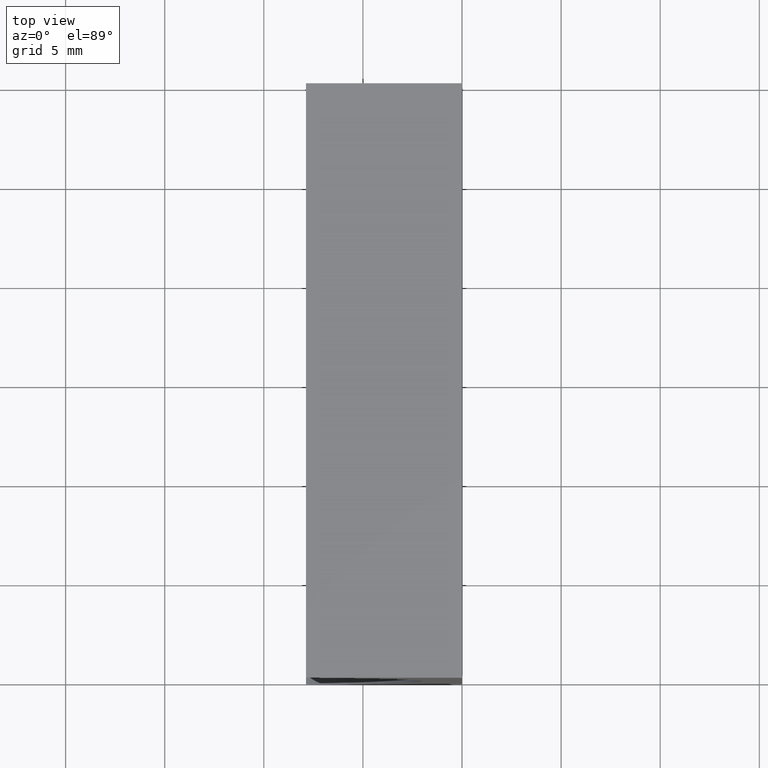
[diagram: clean part render]
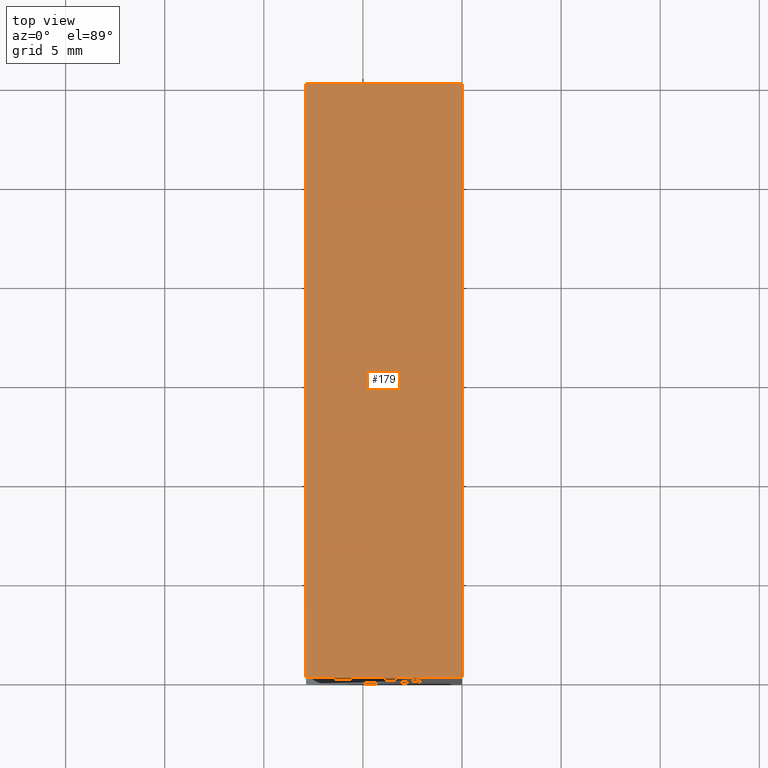
[diagram: same view with one face highlighted and labeled with its STEP entity id]
A machine part, top view. The second image highlights one B-rep face of the part: STEP entity #179.
In plain terms, the highlighted planar face has unit normal (-0, 0, -1).
Its self-contained STEP definition (entity closure, byte-faithful):
#4 = ORIENTED_EDGE ( 'NONE', *, *, #193, .T. ) ;
#12 = VERTEX_POINT ( 'NONE', #191 ) ;
#14 = DIRECTION ( 'NONE',  ( 1.000000000000000000, -0.0000000000000000000, -4.406744573704530200E-016 ) ) ;
#25 = LINE ( 'NONE', #150, #103 ) ;
#28 = CARTESIAN_POINT ( 'NONE',  ( 2.449293598294706500E-015, 30.00000000000000000, 20.00000000000000000 ) ) ;
#30 = AXIS2_PLACEMENT_3D ( 'NONE', #177, #202, #133 ) ;
#43 = VECTOR ( 'NONE', #158, 1000.000000000000000 ) ;
#53 = EDGE_CURVE ( 'NONE', #12, #108, #106, .T. ) ;
#56 = ORIENTED_EDGE ( 'NONE', *, *, #53, .T. ) ;
#64 = LINE ( 'NONE', #180, #43 ) ;
#65 = CARTESIAN_POINT ( 'NONE',  ( 2.449293598294706500E-015, 30.00000000000000000, 20.00000000000000000 ) ) ;
#73 = CARTESIAN_POINT ( 'NONE',  ( -7.873038461671089100, 30.00000000000000000, 20.00000000000000400 ) ) ;
#97 = LINE ( 'NONE', #28, #159 ) ;
#101 = VERTEX_POINT ( 'NONE', #73 ) ;
#103 = VECTOR ( 'NONE', #156, 1000.000000000000000 ) ;
#106 = LINE ( 'NONE', #152, #119 ) ;
#108 = VERTEX_POINT ( 'NONE', #128 ) ;
#119 = VECTOR ( 'NONE', #14, 1000.000000000000000 ) ;
#120 = VERTEX_POINT ( 'NONE', #65 ) ;
#128 = CARTESIAN_POINT ( 'NONE',  ( 2.449293598294706500E-015, 0.0000000000000000000, 20.00000000000000000 ) ) ;
#133 = DIRECTION ( 'NONE',  ( -1.000000000000000000, 0.0000000000000000000, 4.406744573704530200E-016 ) ) ;
#138 = EDGE_CURVE ( 'NONE', #101, #120, #25, .T. ) ;
#149 = FACE_OUTER_BOUND ( 'NONE', #203, .T. ) ;
#150 = CARTESIAN_POINT ( 'NONE',  ( 2.449293598294706500E-015, 30.00000000000000000, 20.00000000000000000 ) ) ;
#151 = EDGE_CURVE ( 'NONE', #120, #108, #97, .T. ) ;
#152 = CARTESIAN_POINT ( 'NONE',  ( 2.449293598294706500E-015, 0.0000000000000000000, 20.00000000000000000 ) ) ;
#156 = DIRECTION ( 'NONE',  ( 1.000000000000000000, -0.0000000000000000000, -4.406744573704530200E-016 ) ) ;
#158 = DIRECTION ( 'NONE',  ( -0.0000000000000000000, -1.000000000000000000, -0.0000000000000000000 ) ) ;
#159 = VECTOR ( 'NONE', #189, 1000.000000000000000 ) ;
#177 = CARTESIAN_POINT ( 'NONE',  ( 2.449293598294706500E-015, 30.00000000000000000, 20.00000000000000000 ) ) ;
#179 = ADVANCED_FACE ( 'NONE', ( #149 ), #184, .F. ) ;
#180 = CARTESIAN_POINT ( 'NONE',  ( -7.873038461671089100, 30.00000000000000000, 20.00000000000000400 ) ) ;
#184 = PLANE ( 'NONE',  #30 ) ;
#189 = DIRECTION ( 'NONE',  ( -0.0000000000000000000, -1.000000000000000000, -0.0000000000000000000 ) ) ;
#191 = CARTESIAN_POINT ( 'NONE',  ( -7.873038461671089100, 0.0000000000000000000, 20.00000000000000400 ) ) ;
#193 = EDGE_CURVE ( 'NONE', #101, #12, #64, .T. ) ;
#198 = ORIENTED_EDGE ( 'NONE', *, *, #138, .F. ) ;
#201 = ORIENTED_EDGE ( 'NONE', *, *, #151, .F. ) ;
#202 = DIRECTION ( 'NONE',  ( -4.406744573704530200E-016, 0.0000000000000000000, -1.000000000000000000 ) ) ;
#203 = EDGE_LOOP ( 'NONE', ( #56, #201, #198, #4 ) ) ;